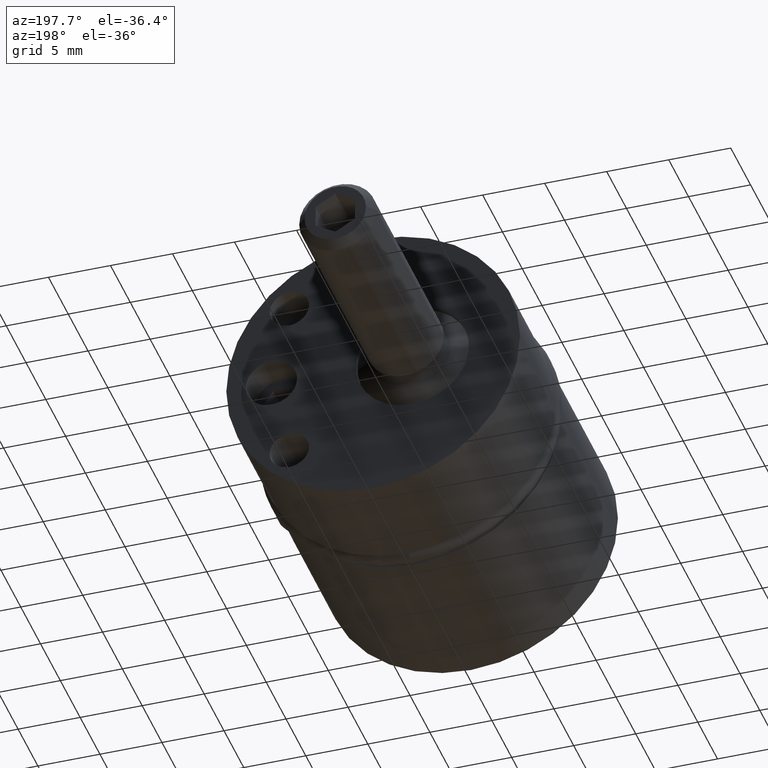
[diagram: clean part render]
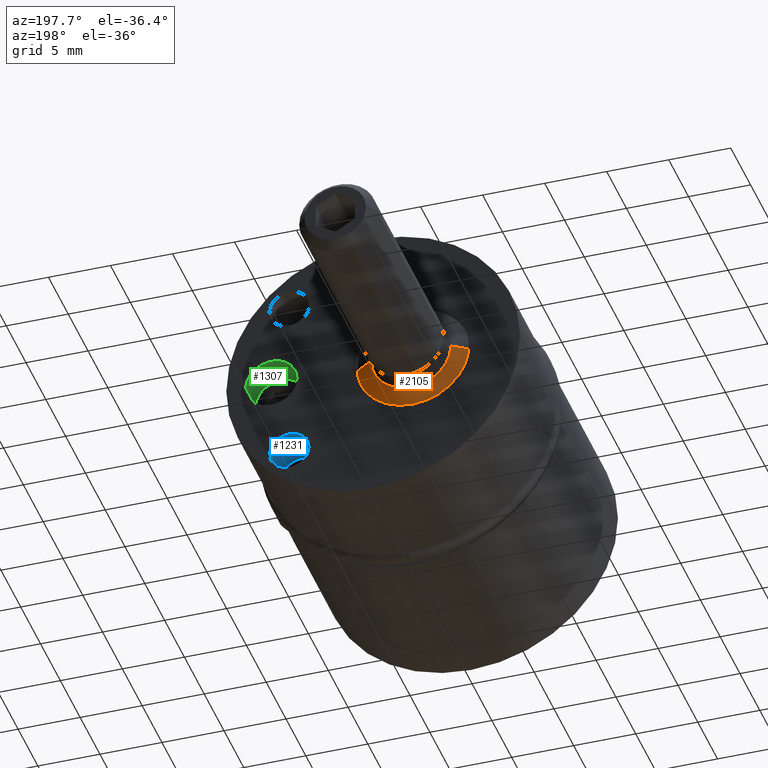
[diagram: same view with three faces highlighted in distinct colors, each labeled with its STEP entity id]
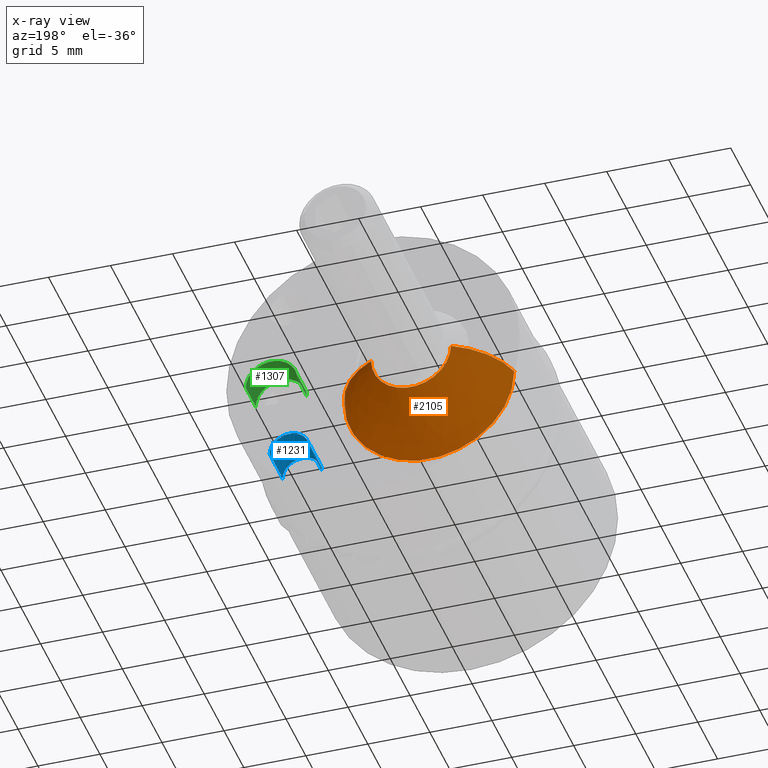
[diagram: x-ray of the same camera — body ghosted, the three highlighted faces saturated]
A machine part, auxiliary view with three faces highlighted in distinct colors.
The next image is the same camera in x-ray (body ghosted, the three faces saturated) — at least one of them is partly hidden behind the body in this view.
Their STEP definitions:

[orange] entity #2105 — the highlighted spherical surface has radius 7.0612 mm.
#1694=CARTESIAN_POINT('',(0.E0,2.475296524297E-1,0.E0));
#1695=DIRECTION('',(0.E0,-1.E0,0.E0));
#1696=DIRECTION('',(-1.E0,0.E0,0.E0));
#1697=AXIS2_PLACEMENT_3D('',#1694,#1695,#1696);
#1699=CARTESIAN_POINT('',(0.E0,0.E0,0.E0));
#1700=DIRECTION('',(0.E0,0.E0,-1.E0));
#1701=DIRECTION('',(-9.712230215827E-1,2.381718756438E-1,0.E0));
#1702=AXIS2_PLACEMENT_3D('',#1699,#1700,#1701);
#1704=CARTESIAN_POINT('',(0.E0,6.621178142899E-2,0.E0));
#1705=DIRECTION('',(0.E0,1.E0,0.E0));
#1706=DIRECTION('',(1.E0,0.E0,0.E0));
#1707=AXIS2_PLACEMENT_3D('',#1704,#1705,#1706);
#1709=CARTESIAN_POINT('',(0.E0,0.E0,0.E0));
#1710=DIRECTION('',(0.E0,0.E0,1.E0));
#1711=DIRECTION('',(9.712230215827E-1,2.381718756438E-1,0.E0));
#1712=AXIS2_PLACEMENT_3D('',#1709,#1710,#1711);
#1912=CARTESIAN_POINT('',(2.7E-1,6.621178142899E-2,0.E0));
#1913=CARTESIAN_POINT('',(-2.7E-1,6.621178142899E-2,0.E0));
#1914=VERTEX_POINT('',#1912);
#1915=VERTEX_POINT('',#1913);
#1974=CARTESIAN_POINT('',(1.265427641867E-1,2.475296524297E-1,0.E0));
#1975=CARTESIAN_POINT('',(-1.265427641867E-1,2.475296524297E-1,0.E0));
#1976=VERTEX_POINT('',#1974);
#1977=VERTEX_POINT('',#1975);
#2094=CARTESIAN_POINT('',(0.E0,0.E0,0.E0));
#2095=DIRECTION('',(0.E0,-1.E0,0.E0));
#2096=DIRECTION('',(-1.E0,0.E0,0.E0));
#2097=AXIS2_PLACEMENT_3D('',#2094,#2095,#2096);
#2098=SPHERICAL_SURFACE('',#2097,2.78E-1);
#2099=ORIENTED_EDGE('',*,*,#2086,.F.);
#2100=ORIENTED_EDGE('',*,*,#2060,.F.);
#2101=ORIENTED_EDGE('',*,*,#2017,.F.);
#2102=ORIENTED_EDGE('',*,*,#2057,.T.);
#2103=EDGE_LOOP('',(#2099,#2100,#2101,#2102));
#2104=FACE_OUTER_BOUND('',#2103,.F.);
#1698=CIRCLE('',#1697,1.265427641867E-1);
#1703=CIRCLE('',#1702,2.78E-1);
#1708=CIRCLE('',#1707,2.7E-1);
#1713=CIRCLE('',#1712,2.78E-1);
#2017=EDGE_CURVE('',#1914,#1915,#1708,.T.);
#2057=EDGE_CURVE('',#1914,#1976,#1713,.T.);
#2060=EDGE_CURVE('',#1915,#1977,#1703,.T.);
#2086=EDGE_CURVE('',#1977,#1976,#1698,.T.);
#2105=ADVANCED_FACE('',(#2104),#2098,.T.);

[blue] entity #1231 — the highlighted cylindrical surface (edge-blend (fillet) strip) has radius 1.5875 mm, axis along (0, -1, 0).
#421=CARTESIAN_POINT('',(2.66E-1,9.84E-1,-2.66E-1));
#422=DIRECTION('',(0.E0,-1.E0,0.E0));
#423=DIRECTION('',(1.E0,0.E0,0.E0));
#424=AXIS2_PLACEMENT_3D('',#421,#422,#423);
#461=DIRECTION('',(0.E0,-1.E0,0.E0));
#462=VECTOR('',#461,1.3E-1);
#463=CARTESIAN_POINT('',(3.285E-1,9.84E-1,-2.66E-1));
#464=LINE('',#463,#462);
#465=DIRECTION('',(0.E0,-1.E0,0.E0));
#466=VECTOR('',#465,1.3E-1);
#467=CARTESIAN_POINT('',(2.035E-1,9.84E-1,-2.66E-1));
#468=LINE('',#467,#466);
#469=CARTESIAN_POINT('',(2.66E-1,8.54E-1,-2.66E-1));
#470=DIRECTION('',(0.E0,-1.E0,0.E0));
#471=DIRECTION('',(1.E0,0.E0,0.E0));
#472=AXIS2_PLACEMENT_3D('',#469,#470,#471);
#647=CARTESIAN_POINT('',(3.285E-1,8.54E-1,-2.66E-1));
#648=CARTESIAN_POINT('',(2.035E-1,8.54E-1,-2.66E-1));
#649=VERTEX_POINT('',#647);
#650=VERTEX_POINT('',#648);
#651=CARTESIAN_POINT('',(3.285E-1,9.84E-1,-2.66E-1));
#652=CARTESIAN_POINT('',(2.035E-1,9.84E-1,-2.66E-1));
#653=VERTEX_POINT('',#651);
#654=VERTEX_POINT('',#652);
#1217=CARTESIAN_POINT('',(2.66E-1,9.84E-1,-2.66E-1));
#1218=DIRECTION('',(0.E0,-1.E0,0.E0));
#1219=DIRECTION('',(1.E0,0.E0,0.E0));
#1220=AXIS2_PLACEMENT_3D('',#1217,#1218,#1219);
#1221=CYLINDRICAL_SURFACE('',#1220,6.25E-2);
#1222=ORIENTED_EDGE('',*,*,#1192,.T.);
#1224=ORIENTED_EDGE('',*,*,#1223,.T.);
#1226=ORIENTED_EDGE('',*,*,#1225,.F.);
#1228=ORIENTED_EDGE('',*,*,#1227,.F.);
#1229=EDGE_LOOP('',(#1222,#1224,#1226,#1228));
#1230=FACE_OUTER_BOUND('',#1229,.F.);
#425=CIRCLE('',#424,6.25E-2);
#473=CIRCLE('',#472,6.25E-2);
#1192=EDGE_CURVE('',#653,#654,#425,.T.);
#1223=EDGE_CURVE('',#654,#650,#468,.T.);
#1225=EDGE_CURVE('',#649,#650,#473,.T.);
#1227=EDGE_CURVE('',#653,#649,#464,.T.);
#1231=ADVANCED_FACE('',(#1230),#1221,.F.);

[green] entity #1307 — the highlighted cylindrical surface (edge-blend (fillet) strip) has radius 2.0701 mm, axis along (0, -1, 0).
#441=CARTESIAN_POINT('',(3.23E-1,9.84E-1,0.E0));
#442=DIRECTION('',(0.E0,-1.E0,0.E0));
#443=DIRECTION('',(1.E0,0.E0,0.E0));
#444=AXIS2_PLACEMENT_3D('',#441,#442,#443);
#497=DIRECTION('',(0.E0,-1.E0,0.E0));
#498=VECTOR('',#497,1.E-1);
#499=CARTESIAN_POINT('',(4.045E-1,9.84E-1,0.E0));
#500=LINE('',#499,#498);
#501=DIRECTION('',(0.E0,-1.E0,0.E0));
#502=VECTOR('',#501,1.E-1);
#503=CARTESIAN_POINT('',(2.415E-1,9.84E-1,0.E0));
#504=LINE('',#503,#502);
#505=CARTESIAN_POINT('',(3.23E-1,8.84E-1,0.E0));
#506=DIRECTION('',(0.E0,-1.E0,0.E0));
#507=DIRECTION('',(1.E0,0.E0,0.E0));
#508=AXIS2_PLACEMENT_3D('',#505,#506,#507);
#663=CARTESIAN_POINT('',(4.045E-1,8.84E-1,0.E0));
#664=CARTESIAN_POINT('',(2.415E-1,8.84E-1,0.E0));
#665=VERTEX_POINT('',#663);
#666=VERTEX_POINT('',#664);
#667=CARTESIAN_POINT('',(4.045E-1,9.84E-1,0.E0));
#668=CARTESIAN_POINT('',(2.415E-1,9.84E-1,0.E0));
#669=VERTEX_POINT('',#667);
#670=VERTEX_POINT('',#668);
#1293=CARTESIAN_POINT('',(3.23E-1,9.84E-1,0.E0));
#1294=DIRECTION('',(0.E0,-1.E0,0.E0));
#1295=DIRECTION('',(1.E0,0.E0,0.E0));
#1296=AXIS2_PLACEMENT_3D('',#1293,#1294,#1295);
#1297=CYLINDRICAL_SURFACE('',#1296,8.15E-2);
#1298=ORIENTED_EDGE('',*,*,#1204,.T.);
#1300=ORIENTED_EDGE('',*,*,#1299,.T.);
#1302=ORIENTED_EDGE('',*,*,#1301,.F.);
#1304=ORIENTED_EDGE('',*,*,#1303,.F.);
#1305=EDGE_LOOP('',(#1298,#1300,#1302,#1304));
#1306=FACE_OUTER_BOUND('',#1305,.F.);
#445=CIRCLE('',#444,8.15E-2);
#509=CIRCLE('',#508,8.15E-2);
#1204=EDGE_CURVE('',#669,#670,#445,.T.);
#1299=EDGE_CURVE('',#670,#666,#504,.T.);
#1301=EDGE_CURVE('',#665,#666,#509,.T.);
#1303=EDGE_CURVE('',#669,#665,#500,.T.);
#1307=ADVANCED_FACE('',(#1306),#1297,.F.);